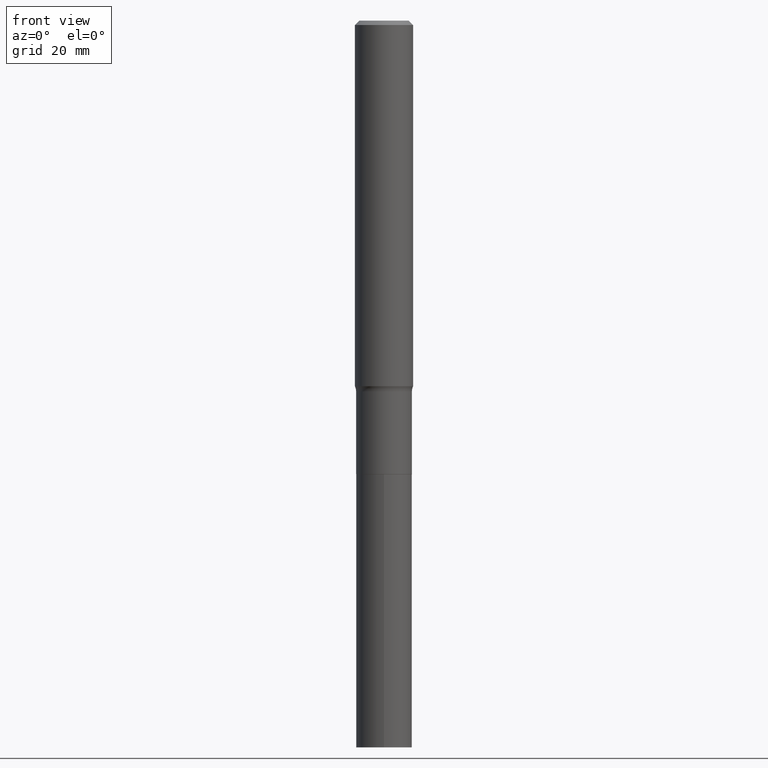
[diagram: clean part render]
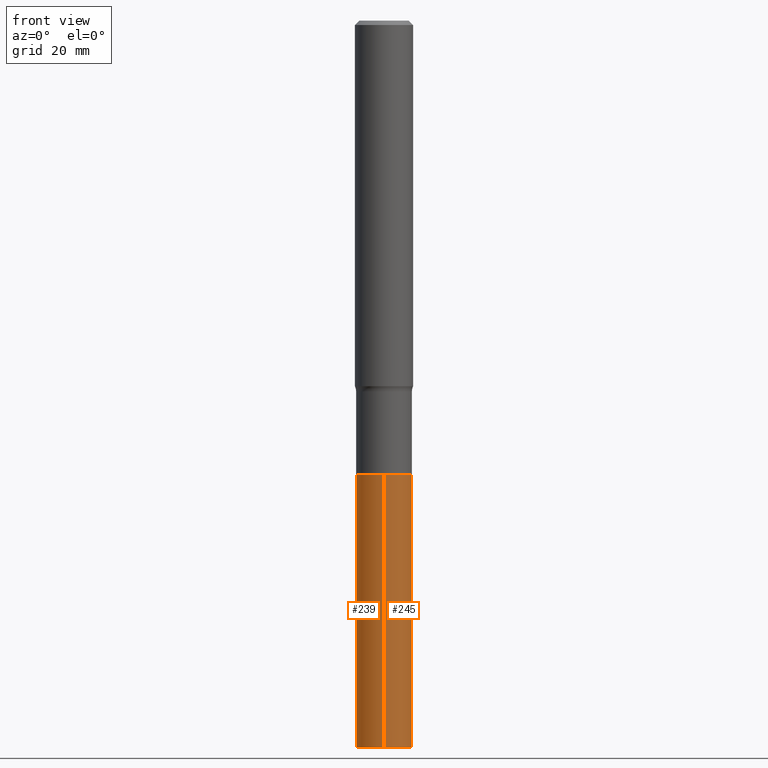
[diagram: same view with one multi-face feature highlighted, each face labeled with its STEP entity id]
A machine part, front view. The highlighted faces form ONE feature: a constant-radius fillet chain: 2 tangent blend faces with common blend radius 4.8006 mm. The faces share edges in the B-rep.
Their STEP definitions:
[1] entity #239 (Cylinder):
#3 = FACE_OUTER_BOUND ( 'NONE', #273, .T. ) ;
#6 = DIRECTION ( 'NONE',  ( -6.982962677686265922E-15, -1.000000000000000000, 2.890844437739961472E-15 ) ) ;
#13 = DIRECTION ( 'NONE',  ( -2.445466155500282851E-29, 3.491485134774723364E-15, 1.000000000000000000 ) ) ;
#35 = VERTEX_POINT ( 'NONE', #454 ) ;
#52 = VECTOR ( 'NONE', #284, 39.37007874015748143 ) ;
#60 = LINE ( 'NONE', #342, #167 ) ;
#111 = LINE ( 'NONE', #320, #52 ) ;
#113 = VERTEX_POINT ( 'NONE', #277 ) ;
#122 = ORIENTED_EDGE ( 'NONE', *, *, #206, .T. ) ;
#125 = CIRCLE ( 'NONE', #372, 0.1889999999999999736 ) ;
#129 = CARTESIAN_POINT ( 'NONE',  ( 1.342925770586686785E-15, 0.1889999999999828206, -4.921300000000002228 ) ) ;
#142 = CARTESIAN_POINT ( 'NONE',  ( 7.510768344436409201E-29, -1.072338663598895144E-14, -3.071299999999999475 ) ) ;
#154 = DIRECTION ( 'NONE',  ( -6.982962677686265922E-15, -1.000000000000000000, 5.781688875479922944E-15 ) ) ;
#167 = VECTOR ( 'NONE', #13, 39.37007874015748143 ) ;
#182 = DIRECTION ( 'NONE',  ( -2.445466155500283131E-29, 3.491485134774723364E-15, 1.000000000000000000 ) ) ;
#192 = VERTEX_POINT ( 'NONE', #438 ) ;
#193 = CYLINDRICAL_SURFACE ( 'NONE', #227, 0.1889999999999999736 ) ;
#202 = VERTEX_POINT ( 'NONE', #129 ) ;
#205 = DIRECTION ( 'NONE',  ( -6.982962677686265922E-15, -1.000000000000000000, 2.890844437739961472E-15 ) ) ;
#206 = EDGE_CURVE ( 'NONE', #202, #192, #125, .T. ) ;
#209 = ORIENTED_EDGE ( 'NONE', *, *, #368, .F. ) ;
#220 = CARTESIAN_POINT ( 'NONE',  ( 1.203488073211193522E-28, -1.718263413532219501E-14, -4.921300000000000452 ) ) ;
#224 = CARTESIAN_POINT ( 'NONE',  ( 7.510768344436409201E-29, -1.072338663598895144E-14, -3.071299999999999475 ) ) ;
#227 = AXIS2_PLACEMENT_3D ( 'NONE', #224, #259, #6 ) ;
#236 = ORIENTED_EDGE ( 'NONE', *, *, #423, .T. ) ;
#239 = ADVANCED_FACE ( 'NONE', ( #3 ), #193, .T. ) ;
#256 = CIRCLE ( 'NONE', #447, 0.1889999999999999736 ) ;
#259 = DIRECTION ( 'NONE',  ( -2.445466155500283131E-29, 3.491485134774723364E-15, 1.000000000000000000 ) ) ;
#273 = EDGE_LOOP ( 'NONE', ( #378, #122, #236, #209 ) ) ;
#277 = CARTESIAN_POINT ( 'NONE',  ( -1.319779946082628891E-15, -0.1890000000000107150, -3.071299999999999031 ) ) ;
#284 = DIRECTION ( 'NONE',  ( -2.445466155500282851E-29, 3.491485134774723364E-15, 1.000000000000000000 ) ) ;
#307 = EDGE_CURVE ( 'NONE', #202, #35, #60, .T. ) ;
#320 = CARTESIAN_POINT ( 'NONE',  ( -1.319779946082628891E-15, -0.1890000000000107150, -3.071299999999999031 ) ) ;
#342 = CARTESIAN_POINT ( 'NONE',  ( 1.342925770586664303E-15, 0.1889999999999892599, -3.071299999999999919 ) ) ;
#367 = DIRECTION ( 'NONE',  ( -2.445466155500283131E-29, 3.491485134774723364E-15, 1.000000000000000000 ) ) ;
#368 = EDGE_CURVE ( 'NONE', #35, #113, #256, .T. ) ;
#372 = AXIS2_PLACEMENT_3D ( 'NONE', #220, #367, #154 ) ;
#378 = ORIENTED_EDGE ( 'NONE', *, *, #307, .F. ) ;
#423 = EDGE_CURVE ( 'NONE', #192, #113, #111, .T. ) ;
#438 = CARTESIAN_POINT ( 'NONE',  ( -1.319779946082583728E-15, -0.1890000000000171543, -4.921299999999999564 ) ) ;
#447 = AXIS2_PLACEMENT_3D ( 'NONE', #142, #182, #205 ) ;
#454 = CARTESIAN_POINT ( 'NONE',  ( 1.342925770586709859E-15, 0.1889999999999892599, -3.071299999999999919 ) ) ;
[2] entity #245 (Cylinder):
#13 = DIRECTION ( 'NONE',  ( -2.445466155500282851E-29, 3.491485134774723364E-15, 1.000000000000000000 ) ) ;
#20 = CIRCLE ( 'NONE', #194, 0.1889999999999999736 ) ;
#35 = VERTEX_POINT ( 'NONE', #454 ) ;
#52 = VECTOR ( 'NONE', #284, 39.37007874015748143 ) ;
#53 = DIRECTION ( 'NONE',  ( -2.445466155500283131E-29, 3.491485134774723364E-15, 1.000000000000000000 ) ) ;
#60 = LINE ( 'NONE', #342, #167 ) ;
#63 = AXIS2_PLACEMENT_3D ( 'NONE', #319, #420, #180 ) ;
#74 = ORIENTED_EDGE ( 'NONE', *, *, #315, .T. ) ;
#89 = CYLINDRICAL_SURFACE ( 'NONE', #394, 0.1889999999999999736 ) ;
#93 = CARTESIAN_POINT ( 'NONE',  ( 7.510768344436409201E-29, -1.072338663598895144E-14, -3.071299999999999475 ) ) ;
#111 = LINE ( 'NONE', #320, #52 ) ;
#113 = VERTEX_POINT ( 'NONE', #277 ) ;
#121 = EDGE_CURVE ( 'NONE', #113, #35, #264, .T. ) ;
#129 = CARTESIAN_POINT ( 'NONE',  ( 1.342925770586686785E-15, 0.1889999999999828206, -4.921300000000002228 ) ) ;
#141 = EDGE_LOOP ( 'NONE', ( #74, #305, #292, #147 ) ) ;
#147 = ORIENTED_EDGE ( 'NONE', *, *, #423, .F. ) ;
#167 = VECTOR ( 'NONE', #13, 39.37007874015748143 ) ;
#180 = DIRECTION ( 'NONE',  ( -6.982962677686265922E-15, -1.000000000000000000, 2.890844437739961472E-15 ) ) ;
#192 = VERTEX_POINT ( 'NONE', #438 ) ;
#194 = AXIS2_PLACEMENT_3D ( 'NONE', #267, #198, #266 ) ;
#198 = DIRECTION ( 'NONE',  ( -2.445466155500283131E-29, 3.491485134774723364E-15, 1.000000000000000000 ) ) ;
#202 = VERTEX_POINT ( 'NONE', #129 ) ;
#245 = ADVANCED_FACE ( 'NONE', ( #402 ), #89, .T. ) ;
#253 = DIRECTION ( 'NONE',  ( -6.982962677686265922E-15, -1.000000000000000000, 2.890844437739961472E-15 ) ) ;
#264 = CIRCLE ( 'NONE', #63, 0.1889999999999999736 ) ;
#266 = DIRECTION ( 'NONE',  ( -6.982962677686265922E-15, -1.000000000000000000, 5.781688875479922944E-15 ) ) ;
#267 = CARTESIAN_POINT ( 'NONE',  ( 1.203488073211193522E-28, -1.718263413532219501E-14, -4.921300000000000452 ) ) ;
#277 = CARTESIAN_POINT ( 'NONE',  ( -1.319779946082628891E-15, -0.1890000000000107150, -3.071299999999999031 ) ) ;
#284 = DIRECTION ( 'NONE',  ( -2.445466155500282851E-29, 3.491485134774723364E-15, 1.000000000000000000 ) ) ;
#292 = ORIENTED_EDGE ( 'NONE', *, *, #121, .F. ) ;
#305 = ORIENTED_EDGE ( 'NONE', *, *, #307, .T. ) ;
#307 = EDGE_CURVE ( 'NONE', #202, #35, #60, .T. ) ;
#315 = EDGE_CURVE ( 'NONE', #192, #202, #20, .T. ) ;
#319 = CARTESIAN_POINT ( 'NONE',  ( 7.510768344436409201E-29, -1.072338663598895144E-14, -3.071299999999999475 ) ) ;
#320 = CARTESIAN_POINT ( 'NONE',  ( -1.319779946082628891E-15, -0.1890000000000107150, -3.071299999999999031 ) ) ;
#342 = CARTESIAN_POINT ( 'NONE',  ( 1.342925770586664303E-15, 0.1889999999999892599, -3.071299999999999919 ) ) ;
#394 = AXIS2_PLACEMENT_3D ( 'NONE', #93, #53, #253 ) ;
#402 = FACE_OUTER_BOUND ( 'NONE', #141, .T. ) ;
#420 = DIRECTION ( 'NONE',  ( -2.445466155500283131E-29, 3.491485134774723364E-15, 1.000000000000000000 ) ) ;
#423 = EDGE_CURVE ( 'NONE', #192, #113, #111, .T. ) ;
#438 = CARTESIAN_POINT ( 'NONE',  ( -1.319779946082583728E-15, -0.1890000000000171543, -4.921299999999999564 ) ) ;
#454 = CARTESIAN_POINT ( 'NONE',  ( 1.342925770586709859E-15, 0.1889999999999892599, -3.071299999999999919 ) ) ;